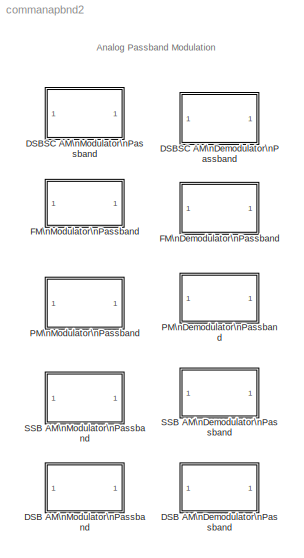
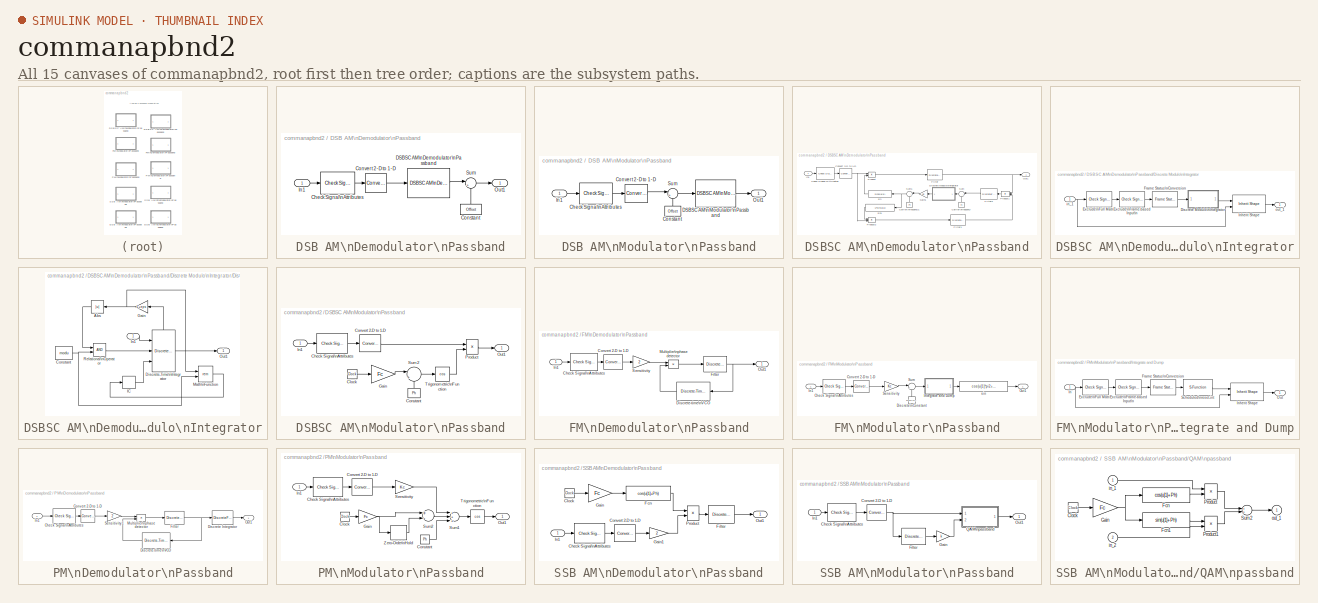
[diagram: thumbnail index - all 15 canvases of the model, root first then tree order]
MODEL commanapbnd2
KIND library
BLOCK [SubSystem] DSB AM\nDemodulator\nPassband
  MaskCallbackString = |||||
  MaskDescription = Demodulate a double-sideband amplitude modulated signal. The input signal must be a sample-based scalar. The output is a 1-D scalar.
  MaskDisplay = plot(0,0,100,100,[5+4.5*[0:.15:10] 50 50 50 50+4.5*[0:10]],[85+10*[sin([0:.15:10]*pi*2+cumsum(sin([0:.15:10]*pi/5))/2)] 85 99 75   10*sin([0:10]*pi/5)+85]);\ndisp('DSB AM')
  MaskEnableString = on,on,on,on,on,on
  MaskHelp = helpview(commbhelp)
  MaskIconFrame = on
  MaskIconOpaque = on
  MaskIconRotate = none
  MaskIconUnits = autoscale
  MaskInitialization = if ((length(Ph)~=1) | (length(Offset)~=1) | (length(ts)~=1) | (length(Fc)~=1))error('Mask parameters must be scalar values.');end;
  MaskPromptString = Offset factor:|Carrier frequency (Hz):|Initial phase (rad):|Lowpass filter numerator:|Lowpass filter denominator:|Sample time (s):
  MaskSelfModifiable = on
  MaskStyleString = edit,edit,edit,edit,edit,edit
  MaskTabNameString = ,,,,,
  MaskToolTipString = on,on,on,on,on,on
  MaskTunableValueString = on,on,on,on,on,on
  MaskType = DSB AM Demodulator Passband
  MaskValueString = 1|100|0|[4.57 9.14 4.57]*.01|[1 -1.3108 .4936]|0.001
  MaskVarAliasString = ,,,,,
  MaskVariables = Offset=@1;Fc=@2;Ph=@3;num=@4;den=@5;ts=@6;
  MaskVisibilityString = on,on,on,on,on,on
  Ports = [1, 1]
  TreatAsAtomicUnit = off
BLOCK [Reference] DSB AM\nDemodulator\nPassband/Check Signal\nAttributes  REF=dspsigattribs/Check Signal\nAttributes
  Complexity = Ignore
  DatatypeCheckMethod = Ignore
  DatatypeGeneral = Boolean
  Dimensions = Scalar (1-D or 2-D)
  DimsCheckMethod = Is...
  DtypeFixedSpecific = Any fixed-point
  DtypeFloatSpecific = Any floating-point
  DtypeIntSpecific = Any integer
  Frame = Sample-based
  Ports = [1, 1]
  SampleMode = Ignore
  SigAttribCheckMethod = Does not match attributes exactly
  SourceBlock = dspsigattribs/Check Signal\nAttributes
  SourceType = Check Signal Attributes
BLOCK [Constant] DSB AM\nDemodulator\nPassband/Constant
  Value = Offset
BLOCK [Reference] DSB AM\nDemodulator\nPassband/Convert 2-D to 1-D  REF=dspsigattribs/Convert 2-D to 1-D
  Ports = [1, 1]
  SourceBlock = dspsigattribs/Convert 2-D to 1-D
  SourceType = Convert 2-D to 1-D
BLOCK [Reference] DSB AM\nDemodulator\nPassband/DSBSC AM\nDemodulator\nPassband  REF=commanapbnd2/DSBSC AM\nDemodulator\nPassband
  Fc = Fc
  Ph = Ph
  Ports = [1, 1]
  SourceBlock = commanapbnd2/DSBSC AM\nDemodulator\nPassband
  SourceType = DSBSC AM Demodulator Passband
  den = den
  num = num
  ts = ts
BLOCK [Inport] DSB AM\nDemodulator\nPassband/In1
  IconDisplay = Port number
BLOCK [Outport] DSB AM\nDemodulator\nPassband/Out1
  IconDisplay = Port number
BLOCK [Sum] DSB AM\nDemodulator\nPassband/Sum
  IconShape = round
  Inputs = |+-
  Ports = [2, 1]
BLOCK [SubSystem] DSB AM\nModulator\nPassband
  MaskCallbackString = ||
  MaskDescription = Modulate the input signal using the double-sideband amplitude modulation method. The input signal must be a sample-based scalar. The output is a 1-D scalar.
  MaskDisplay = plot(0,0,100,100,[4.5*[0:10]+5 50 50 50 50+4.5*[0:.15:10]],[10*sin([0:10]*pi/5)+85 85 99 75 85+10*[sin([0:.15:10]*pi*2+cumsum(sin([0:.15:10]*pi/5))/2)]]);\ndisp('DSB AM')
  MaskEnableString = on,on,on
  MaskHelp = helpview(commbhelp)
  MaskIconFrame = on
  MaskIconOpaque = on
  MaskIconRotate = none
  MaskIconUnits = autoscale
  MaskInitialization = if ((length(Ph)~=1) | (length(Fc)~=1) | (length(Offset)~=1))error('Mask parameters must be scalar values.');end;
  MaskPromptString = Input signal offset:|Carrier frequency (Hz):|Initial phase (rad):
  MaskStyleString = edit,edit,edit
  MaskTabNameString = ,,
  MaskToolTipString = on,on,on
  MaskTunableValueString = on,on,on
  MaskType = DSB AM Modulator Passband
  MaskValueString = 1|100|0
  MaskVarAliasString = ,,
  MaskVariables = Offset=@1;Fc=@2;Ph=@3;
  MaskVisibilityString = on,on,on
  Ports = [1, 1]
  TreatAsAtomicUnit = off
BLOCK [Reference] DSB AM\nModulator\nPassband/Check Signal\nAttributes  REF=dspsigattribs/Check Signal\nAttributes
  Complexity = Ignore
  DatatypeCheckMethod = Ignore
  DatatypeGeneral = Boolean
  Dimensions = Scalar (1-D or 2-D)
  DimsCheckMethod = Is...
  DtypeFixedSpecific = Any fixed-point
  DtypeFloatSpecific = Any floating-point
  DtypeIntSpecific = Any integer
  Frame = Sample-based
  Ports = [1, 1]
  SampleMode = Ignore
  SigAttribCheckMethod = Does not match attributes exactly
  SourceBlock = dspsigattribs/Check Signal\nAttributes
  SourceType = Check Signal Attributes
BLOCK [Constant] DSB AM\nModulator\nPassband/Constant
  Value = Offset
BLOCK [Reference] DSB AM\nModulator\nPassband/Convert 2-D to 1-D  REF=dspsigattribs/Convert 2-D to 1-D
  Ports = [1, 1]
  SourceBlock = dspsigattribs/Convert 2-D to 1-D
  SourceType = Convert 2-D to 1-D
BLOCK [Reference] DSB AM\nModulator\nPassband/DSBSC AM\nModulator\nPassband  REF=commanapbnd2/DSBSC AM\nModulator\nPassband
  Fc = Fc
  Ph = Ph
  Ports = [1, 1]
  SourceBlock = commanapbnd2/DSBSC AM\nModulator\nPassband
  SourceType = DSBSC AM Modulator Passband
BLOCK [Inport] DSB AM\nModulator\nPassband/In1
  IconDisplay = Port number
BLOCK [Outport] DSB AM\nModulator\nPassband/Out1
  IconDisplay = Port number
BLOCK [Sum] DSB AM\nModulator\nPassband/Sum
  IconShape = round
  Inputs = |++
  Ports = [2, 1]
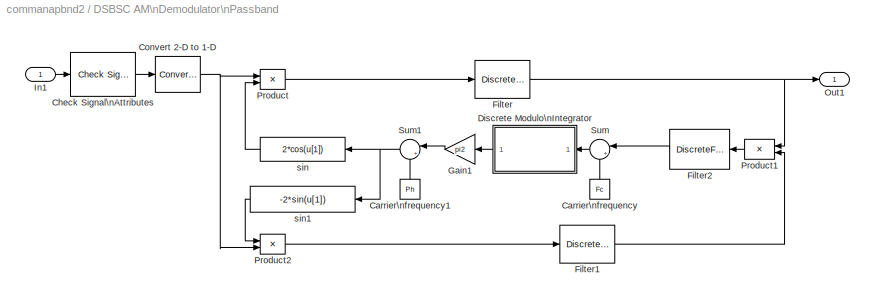
BLOCK [SubSystem] DSBSC AM\nDemodulator\nPassband
  MaskCallbackString = ||||
  MaskDescription = Demodulate a double-sideband suppressed carrier amplitude modulated signal. The input signal must be a sample-based scalar. The output is a 1-D scalar.
  MaskDisplay = plot(0,0,100,100,[5+4.5*[0:.15:10] 50 50 50 50+4.5*[0:10]],[85+10*[sin([0:.15:10]*pi*2+cumsum(sin([0:.15:10]*pi/5))/2)] 85 99 75   10*sin([0:10]*pi/5)+85]);					\ndisp('DSBSC AM')
  MaskEnableString = on,on,on,on,on
  MaskHelp = helpview(commbhelp)
  MaskIconFrame = on
  MaskIconOpaque = on
  MaskIconRotate = none
  MaskIconUnits = autoscale
  MaskInitialization = if ((length(Ph)~=1) | (length(Fc)~=1) | (length(ts)~=1))error('Mask parameters must be scalar values.');end;\npi2=pi*2;\n\n\n
  MaskPromptString = Carrier frequency (Hz):|Lowpass filter numerator:|Lowpass filter denominator:|Initial phase (rad):|Sample time (s):
  MaskSelfModifiable = on
  MaskStyleString = edit,edit,edit,edit,edit
  MaskTabNameString = ,,,,
  MaskToolTipString = on,on,on,on,on
  MaskTunableValueString = on,on,on,on,on
  MaskType = DSBSC AM Demodulator Passband
  MaskValueString = 100|[4.57 9.14 4.57]*.01|[1 -1.3108 .4936]|pi/2|0.001
  MaskVarAliasString = ,,,,
  MaskVariables = Fc=@1;num=@2;den=@3;Ph=@4;ts=@5;
  MaskVisibilityString = on,on,on,on,on
  Ports = [1, 1]
  TreatAsAtomicUnit = off
BLOCK [Constant] DSBSC AM\nDemodulator\nPassband/Carrier\nfrequency
  MaskIconFrame = on
  MaskIconOpaque = on
  MaskIconRotate = none
  MaskIconUnits = autoscale
  Value = Fc
BLOCK [Constant] DSBSC AM\nDemodulator\nPassband/Carrier\nfrequency1
  MaskIconFrame = on
  MaskIconOpaque = on
  MaskIconRotate = none
  MaskIconUnits = autoscale
  Value = Ph
BLOCK [Reference] DSBSC AM\nDemodulator\nPassband/Check Signal\nAttributes  REF=dspsigattribs/Check Signal\nAttributes
  Complexity = Ignore
  DatatypeCheckMethod = Ignore
  DatatypeGeneral = Boolean
  Dimensions = Scalar (1-D or 2-D)
  DimsCheckMethod = Is...
  DtypeFixedSpecific = Any fixed-point
  DtypeFloatSpecific = Any floating-point
  DtypeIntSpecific = Any integer
  Frame = Sample-based
  Ports = [1, 1]
  SampleMode = Ignore
  SigAttribCheckMethod = Does not match attributes exactly
  SourceBlock = dspsigattribs/Check Signal\nAttributes
  SourceType = Check Signal Attributes
BLOCK [Reference] DSBSC AM\nDemodulator\nPassband/Convert 2-D to 1-D  REF=dspsigattribs/Convert 2-D to 1-D
  Ports = [1, 1]
  SourceBlock = dspsigattribs/Convert 2-D to 1-D
  SourceType = Convert 2-D to 1-D
BLOCK [SubSystem] DSBSC AM\nDemodulator\nPassband/Discrete Modulo\nIntegrator
  ErrorFcn = commblkdmint
  MaskCallbackString = |||
  MaskDescription = Integrate the input signal in discrete time and then uses the Absolute value bound parameter, K, to produce output strictly between -K and K. The block uses the rem function in MATLAB.\n\nThe input can be either a scalar, a sample-based vector, or a frame-based row vector.  This block processes each vector element independently.
  MaskDisplay = disp('Discrete\\nModulo\\nIntegrator')
  MaskEnableString = on,on,on,on
  MaskHelp = helpview(commbhelp)
  MaskIconFrame = on
  MaskIconOpaque = on
  MaskIconRotate = none
  MaskIconUnits = autoscale
  MaskInitialization = commblkdmodint(gcb);
  MaskPromptString = Integration method:|Absolute value bound:|Initial condition:|Sample time:
  MaskSelfModifiable = on
  MaskStyleString = popup(Forward Euler|Backward Euler|Trapezoidal),edit,edit,edit
  MaskTabNameString = ,,,
  MaskToolTipString = on,on,on,on
  MaskTunableValueString = on,on,on,on
  MaskType = Discrete Modulo Integrator
  MaskValueString = Forward Euler|1|0|ts
  MaskVarAliasString = ,,,
  MaskVariables = method=&1;modu=@2;init=@3;ts=@4;
  MaskVisibilityString = on,on,on,on
  Ports = [1, 1]
  TreatAsAtomicUnit = off
BLOCK [SubSystem] DSBSC AM\nDemodulator\nPassband/Discrete Modulo\nIntegrator/Discrete Modulo\nIntegrator
  Ports = [1, 1]
  TreatAsAtomicUnit = off
BLOCK [Abs] DSBSC AM\nDemodulator\nPassband/Discrete Modulo\nIntegrator/Discrete Modulo\nIntegrator/Abs
BLOCK [Constant] DSBSC AM\nDemodulator\nPassband/Discrete Modulo\nIntegrator/Discrete Modulo\nIntegrator/Constant
  Value = modu
BLOCK [DiscreteIntegrator] DSBSC AM\nDemodulator\nPassband/Discrete Modulo\nIntegrator/Discrete Modulo\nIntegrator/Discrete-Time\nIntegrator
  ExternalReset = rising
  InitialConditionSource = external
  IntegratorMethod = Forward Euler
  LowerSaturationLimit = -2*modu
  Ports = [3, 1, 0, 0, 1]
  SampleTime = ts
  ShowStatePort = on
  UpperSaturationLimit = 2*modu
BLOCK [Gain] DSBSC AM\nDemodulator\nPassband/Discrete Modulo\nIntegrator/Discrete Modulo\nIntegrator/Gain
  Gain = 1+eps
BLOCK [InitialCondition] DSBSC AM\nDemodulator\nPassband/Discrete Modulo\nIntegrator/Discrete Modulo\nIntegrator/IC
  Value = init
BLOCK [Inport] DSBSC AM\nDemodulator\nPassband/Discrete Modulo\nIntegrator/Discrete Modulo\nIntegrator/In1
  IconDisplay = Port number
BLOCK [Math] DSBSC AM\nDemodulator\nPassband/Discrete Modulo\nIntegrator/Discrete Modulo\nIntegrator/Math\nFunction
  Operator = rem
  Ports = [2, 1]
BLOCK [Outport] DSBSC AM\nDemodulator\nPassband/Discrete Modulo\nIntegrator/Discrete Modulo\nIntegrator/Out1
  IconDisplay = Port number
BLOCK [RelationalOperator] DSBSC AM\nDemodulator\nPassband/Discrete Modulo\nIntegrator/Discrete Modulo\nIntegrator/Relational\nOperator
BLOCK [Reference] DSBSC AM\nDemodulator\nPassband/Discrete Modulo\nIntegrator/Exclude\nFrame-based Input\n  REF=dspsigattribs/Check Signal\nAttributes
  Complexity = Ignore
  DatatypeCheckMethod = Ignore
  DatatypeGeneral = Boolean
  Dimensions = Row vector (2-D) or scalar
  DimsCheckMethod = Is not...
  DtypeFixedSpecific = Any fixed-point
  DtypeFloatSpecific = Any floating-point
  DtypeIntSpecific = Any integer
  Frame = Frame-based
  Ports = [1, 1]
  SampleMode = Ignore
  SigAttribCheckMethod = Matches attributes exactly
  SourceBlock = dspsigattribs/Check Signal\nAttributes
  SourceType = Check Signal Attributes
BLOCK [Reference] DSBSC AM\nDemodulator\nPassband/Discrete Modulo\nIntegrator/Exclude\nFull Matrix  REF=dspsigattribs/Check Signal\nAttributes
  Complexity = Ignore
  DatatypeCheckMethod = Ignore
  DatatypeGeneral = Boolean
  Dimensions = Full matrix (2-D)
  DimsCheckMethod = Is...
  DtypeFixedSpecific = Any fixed-point
  DtypeFloatSpecific = Any floating-point
  DtypeIntSpecific = Any integer
  Frame = Ignore
  Ports = [1, 1]
  SampleMode = Ignore
  SigAttribCheckMethod = Matches attributes exactly
  SourceBlock = dspsigattribs/Check Signal\nAttributes
  SourceType = Check Signal Attributes
BLOCK [Reference] DSBSC AM\nDemodulator\nPassband/Discrete Modulo\nIntegrator/Frame Status\nConversion  REF=dspsigattribs/Frame Status\nConversion
  Ports = [1, 1]
  SourceBlock = dspsigattribs/Frame Status\nConversion
  SourceType = Frame Status Conversion
  growRefPort = off
  outframe = Sample-based
BLOCK [Reference] DSBSC AM\nDemodulator\nPassband/Discrete Modulo\nIntegrator/Inherit Shape  REF=commblksprivate/Inherit Shape
  Ports = [2, 1]
  SourceBlock = commblksprivate/Inherit Shape
  SourceType = Inherit Shape
BLOCK [Inport] DSBSC AM\nDemodulator\nPassband/Discrete Modulo\nIntegrator/in_1
  IconDisplay = Port number
BLOCK [Outport] DSBSC AM\nDemodulator\nPassband/Discrete Modulo\nIntegrator/out_1
  IconDisplay = Port number
  InitialOutput = 0
BLOCK [DiscreteFilter] DSBSC AM\nDemodulator\nPassband/Filter
  Denominator = den
  Numerator = num
  SampleTime = ts
BLOCK [DiscreteFilter] DSBSC AM\nDemodulator\nPassband/Filter1
  Denominator = den
  Numerator = num
  SampleTime = ts
BLOCK [DiscreteFilter] DSBSC AM\nDemodulator\nPassband/Filter2
  Denominator = den
  MaskIconFrame = on
  MaskIconOpaque = on
  MaskIconRotate = none
  MaskIconUnits = autoscale
  Numerator = num
  SampleTime = ts
BLOCK [Gain] DSBSC AM\nDemodulator\nPassband/Gain1
  Gain = pi2
  MaskIconFrame = on
  MaskIconOpaque = on
  MaskIconRotate = none
  MaskIconUnits = autoscale
BLOCK [Inport] DSBSC AM\nDemodulator\nPassband/In1
  IconDisplay = Port number
BLOCK [Outport] DSBSC AM\nDemodulator\nPassband/Out1
  IconDisplay = Port number
BLOCK [Product] DSBSC AM\nDemodulator\nPassband/Product
  Ports = [2, 1]
  RndMeth = Floor
BLOCK [Product] DSBSC AM\nDemodulator\nPassband/Product1
  MaskIconFrame = on
  MaskIconOpaque = on
  MaskIconRotate = none
  MaskIconUnits = autoscale
  Ports = [2, 1]
  RndMeth = Floor
BLOCK [Product] DSBSC AM\nDemodulator\nPassband/Product2
  Ports = [2, 1]
  RndMeth = Floor
BLOCK [Sum] DSBSC AM\nDemodulator\nPassband/Sum
  IconShape = round
  Inputs = |++
  MaskIconFrame = on
  MaskIconOpaque = on
  MaskIconRotate = none
  MaskIconUnits = autoscale
  Ports = [2, 1]
BLOCK [Sum] DSBSC AM\nDemodulator\nPassband/Sum1
  IconShape = round
  Inputs = |++
  MaskIconFrame = on
  MaskIconOpaque = on
  MaskIconRotate = none
  MaskIconUnits = autoscale
  Ports = [2, 1]
BLOCK [Fcn] DSBSC AM\nDemodulator\nPassband/sin
  Expr = 2*cos(u[1])
  MaskIconFrame = on
  MaskIconOpaque = on
  MaskIconRotate = none
  MaskIconUnits = autoscale
BLOCK [Fcn] DSBSC AM\nDemodulator\nPassband/sin1
  Expr = -2*sin(u[1])
  MaskIconFrame = on
  MaskIconOpaque = on
  MaskIconRotate = none
  MaskIconUnits = autoscale
BLOCK [SubSystem] DSBSC AM\nModulator\nPassband
  MaskCallbackString = |
  MaskDescription = Modulate the input signal using the double-sideband suppressed carrier amplitude modulation method. The input signal must be a sample-based scalar. The output is a 1-D scalar.
  MaskDisplay = plot(0,0,100,100,[4.5*[0:10]+5 50 50 50 50+4.5*[0:.15:10]],[10*sin([0:10]*pi/5)+85 85 99 75 85+10*[sin([0:.15:10]*pi*2+cumsum(sin([0:.15:10]*pi/5))/2)]]);\ndisp('DSBSC AM')
  MaskEnableString = on,on
  MaskHelp = helpview(commbhelp)
  MaskIconFrame = on
  MaskIconOpaque = on
  MaskIconRotate = none
  MaskIconUnits = autoscale
  MaskInitialization = if ((length(Ph)~=1) | (length(Fc)~=1))error('Mask parameters must be scalar values.');end;\nFc=Fc*2*pi;\n\n
  MaskPromptString = Carrier frequency (Hz):|Initial phase (rad):
  MaskStyleString = edit,edit
  MaskTabNameString = ,
  MaskToolTipString = on,on
  MaskTunableValueString = on,on
  MaskType = DSBSC AM Modulator Passband
  MaskValueString = 100|pi/2
  MaskVarAliasString = ,
  MaskVariables = Fc=@1;Ph=@2;
  MaskVisibilityString = on,on
  Ports = [1, 1]
  TreatAsAtomicUnit = off
BLOCK [Reference] DSBSC AM\nModulator\nPassband/Check Signal\nAttributes  REF=dspsigattribs/Check Signal\nAttributes
  Complexity = Ignore
  DatatypeCheckMethod = Ignore
  DatatypeGeneral = Boolean
  Dimensions = Scalar (1-D or 2-D)
  DimsCheckMethod = Is...
  DtypeFixedSpecific = Any fixed-point
  DtypeFloatSpecific = Any floating-point
  DtypeIntSpecific = Any integer
  Frame = Sample-based
  Ports = [1, 1]
  SampleMode = Ignore
  SigAttribCheckMethod = Does not match attributes exactly
  SourceBlock = dspsigattribs/Check Signal\nAttributes
  SourceType = Check Signal Attributes
BLOCK [Clock] DSBSC AM\nModulator\nPassband/Clock
  Decimation = 10
BLOCK [Constant] DSBSC AM\nModulator\nPassband/Constant
  Value = Ph
BLOCK [Reference] DSBSC AM\nModulator\nPassband/Convert 2-D to 1-D  REF=dspsigattribs/Convert 2-D to 1-D
  Ports = [1, 1]
  SourceBlock = dspsigattribs/Convert 2-D to 1-D
  SourceType = Convert 2-D to 1-D
BLOCK [Gain] DSBSC AM\nModulator\nPassband/Gain
  Gain = Fc
BLOCK [Inport] DSBSC AM\nModulator\nPassband/In1
  IconDisplay = Port number
BLOCK [Outport] DSBSC AM\nModulator\nPassband/Out1
  IconDisplay = Port number
BLOCK [Product] DSBSC AM\nModulator\nPassband/Product
  Ports = [2, 1]
  RndMeth = Floor
BLOCK [Sum] DSBSC AM\nModulator\nPassband/Sum2
  IconShape = round
  Inputs = |++
  Ports = [2, 1]
BLOCK [Trigonometry] DSBSC AM\nModulator\nPassband/Trigonometric\nFunction
  Operator = cos
  Ports = [1, 1]
BLOCK [SubSystem] FM\nDemodulator\nPassband
  MaskCallbackString = |||||
  MaskDescription = Demodulate a frequency modulated signal using a phase-locked loop. The input signal must be a sample-based scalar. The output is a 1-D scalar.
  MaskDisplay = plot(0,0,100,100,[5+4.5*[0:.15:10] 50 50 50 50+4.5*[0:10]],[85+10*[sin([0:.15:10]*pi*2+cumsum(sin([0:.15:10]*pi/5))/2)] 85 99 75   10*sin([0:10]*pi/5)+85]);\ndisp('FM')
  MaskEnableString = on,on,on,on,on,on
  MaskHelp = helpview(commbhelp)
  MaskIconFrame = on
  MaskIconOpaque = on
  MaskIconRotate = none
  MaskIconUnits = autoscale
  MaskInitialization = if ((length(Ph)~=1) | (length(HzPerVolt)~=1) | (length(ts)~=1) | (length(Fc)~=1))error('Mask parameters must be scalar values.');end;\nPh=Ph+pi/2;\n\n
  MaskPromptString = Carrier frequency (Hz):|Initial phase (rad):|Modulation constant (Hertz per volt):|Lowpass filter numerator:|Lowpass filter denominator:|Sample time (s):
  MaskStyleString = edit,edit,edit,edit,edit,edit
  MaskTabNameString = ,,,,,
  MaskToolTipString = on,on,on,on,on,on
  MaskTunableValueString = on,on,on,on,on,on
  MaskType = FM Demodulator Passband
  MaskValueString = 100|0|1|[4.57 9.14 4.57]*.01|[1 -1.3108 .4936]|0.001
  MaskVarAliasString = ,,,,,
  MaskVariables = Fc=@1;Ph=@2;HzPerVolt=@3;num=@4;den=@5;ts=@6;
  MaskVisibilityString = on,on,on,on,on,on
  Ports = [1, 1]
  TreatAsAtomicUnit = off
BLOCK [Reference] FM\nDemodulator\nPassband/Check Signal\nAttributes  REF=dspsigattribs/Check Signal\nAttributes
  Complexity = Ignore
  DatatypeCheckMethod = Ignore
  DatatypeGeneral = Boolean
  Dimensions = Scalar (1-D or 2-D)
  DimsCheckMethod = Is...
  DtypeFixedSpecific = Any fixed-point
  DtypeFloatSpecific = Any floating-point
  DtypeIntSpecific = Any integer
  Frame = Sample-based
  Ports = [1, 1]
  SampleMode = Ignore
  SigAttribCheckMethod = Does not match attributes exactly
  SourceBlock = dspsigattribs/Check Signal\nAttributes
  SourceType = Check Signal Attributes
BLOCK [Reference] FM\nDemodulator\nPassband/Convert 2-D to 1-D  REF=dspsigattribs/Convert 2-D to 1-D
  Ports = [1, 1]
  SourceBlock = dspsigattribs/Convert 2-D to 1-D
  SourceType = Convert 2-D to 1-D
BLOCK [Reference] FM\nDemodulator\nPassband/Discrete-time\nVCO  REF=commsynccomp2/Discrete-Time\nVCO
  Ac = 1
  Fc = Fc
  Kc = HzPerVolt
  Ph = Ph
  Ports = [1, 1]
  SourceBlock = commsynccomp2/Discrete-Time\nVCO
  SourceType = Discrete-Time VCO
  ts = ts
BLOCK [DiscreteFilter] FM\nDemodulator\nPassband/Filter
  Denominator = den
  Numerator = num
  SampleTime = ts
BLOCK [Inport] FM\nDemodulator\nPassband/In1
  IconDisplay = Port number
BLOCK [Product] FM\nDemodulator\nPassband/Multiplier\nphase detector
  Ports = [2, 1]
  RndMeth = Floor
BLOCK [Outport] FM\nDemodulator\nPassband/Out1
  IconDisplay = Port number
BLOCK [Gain] FM\nDemodulator\nPassband/Sensitivity
  Gain = 2
BLOCK [SubSystem] FM\nModulator\nPassband
  MaskCallbackString = ||||
  MaskDescription = Modulate the input signal using the frequency modulation method. The input signal must be a sample-based scalar. The output is a 1-D scalar.
  MaskDisplay = plot(0,0,100,100,[4.5*[0:10]+5 50 50 50 50+4.5*[0:.15:10]],[10*sin([0:10]*pi/5)+85 85 99 75 85+10*[sin([0:.15:10]*pi*2+cumsum(sin([0:.15:10]*pi/5))/2)]]);\ndisp('FM')
  MaskEnableString = on,on,on,on,on
  MaskHelp = helpview(commbhelp)
  MaskIconFrame = on
  MaskIconOpaque = on
  MaskIconRotate = none
  MaskIconUnits = autoscale
  MaskInitialization = if ((length(Ph)~=1) | (length(HzPerV)~=1) | (length(ts)~=1) | (length(td)~=1) | (length(Fc)~=1))error('Mask parameters must be scalar values.');end;\nKc=HzPerV;pi2=2*pi;if isinf(td),td=realmax;end;\n
  MaskPromptString = Carrier frequency (Hz):|Initial phase (rad):|Modulation constant (Hertz per volt):|Sample time (s):|Symbol interval (s, Use Inf for analog mod);
  MaskStyleString = edit,edit,edit,edit,edit
  MaskTabNameString = ,,,,
  MaskToolTipString = on,on,on,on,on
  MaskTunableValueString = on,on,on,on,on
  MaskType = FM Modulator Passband
  MaskValueString = 100|0|1|0.001|Inf
  MaskVarAliasString = ,,,,
  MaskVariables = Fc=@1;Ph=@2;HzPerV=@3;ts=@4;td=@5;
  MaskVisibilityString = on,on,on,on,on
  Ports = [1, 1]
  TreatAsAtomicUnit = off
BLOCK [Reference] FM\nModulator\nPassband/Check Signal\nAttributes  REF=dspsigattribs/Check Signal\nAttributes
  Complexity = Ignore
  DatatypeCheckMethod = Ignore
  DatatypeGeneral = Boolean
  Dimensions = Scalar (1-D or 2-D)
  DimsCheckMethod = Is...
  DtypeFixedSpecific = Any fixed-point
  DtypeFloatSpecific = Any floating-point
  DtypeIntSpecific = Any integer
  Frame = Sample-based
  Ports = [1, 1]
  SampleMode = Ignore
  ShowPortLabels = on
  SigAttribCheckMethod = Does not match attributes exactly
  SourceBlock = dspsigattribs/Check Signal\nAttributes
  SourceType = Check Signal Attributes
BLOCK [Reference] FM\nModulator\nPassband/Convert 2-D to 1-D  REF=dspsigattribs/Convert 2-D to 1-D
  Ports = [1, 1]
  ShowPortLabels = off
  SourceBlock = dspsigattribs/Convert 2-D to 1-D
  SourceType = Convert 2-D to 1-D
BLOCK [Reference] FM\nModulator\nPassband/Discrete\nConstant  REF=dspsrcs4/DSP\nConstant
  FramebasedOutput = off
  InterpretAs1D = on
  Ports = [0, 1]
  SampleMode = Discrete
  ShowPortLabels = on
  SourceBlock = dspsrcs4/DSP\nConstant
  SourceType = DSP Constant
  Ts = ts
  Value = Fc
  additionalParams = off
  allowOverrides = on
  continuousOutput = Sample-based
  dataType = Inherit from 'Constant value'
  discreteOutput = Sample-based (interpret vectors as 1-D)
  fracBitsMode = Best precision
  framePeriod = ts
  numFracBits = 15
  sampTime = ts
  udDataType = sfix(16)
  wordLen = 16
BLOCK [Inport] FM\nModulator\nPassband/In1
  IconDisplay = Port number
BLOCK [SubSystem] FM\nModulator\nPassband/Integrate and Dump
  ErrorFcn = commblkintdmp
  MaskCallbackString = ||
  MaskDescription = Integrate the input signal in discrete time over the Integration period and then reduce modulo the Absolute value bound parameter. The integrator resets its internal state before integrating the next period.\n\nThe input can be either a scalar, a sample-based vector, or a frame-based row vector.  This block processes each vector element independently.
  MaskDisplay = disp('Integrate\\nand Dump')
  MaskEnableString = on,on,on
  MaskHelp = helpview(commbhelp)
  MaskIconFrame = on
  MaskIconOpaque = on
  MaskIconRotate = none
  MaskIconUnits = autoscale
  MaskInitialization = limit(find(isinf(limit))) = realmax;\ntd(find(isinf(td))) = realmax;\n\nif(~isempty(ts))\n   if(length(ts) ~= 1)\n      error('Sample time parameter must be a real scalar.');\n   end;\nend;
  MaskPromptString = Absolute value bound:|Integration period (s):|Sample time:
  MaskSelfModifiable = on
  MaskStyleString = edit,edit,edit
  MaskTabNameString = ,,
  MaskToolTipString = on,on,on
  MaskTunableValueString = on,on,on
  MaskType = Integrate and Dump
  MaskValueString = Inf/2|td|ts
  MaskVarAliasString = ,,
  MaskVariables = limit=@1;td=@2;ts=@3;
  MaskVisibilityString = on,on,on
  Ports = [1, 1]
  TreatAsAtomicUnit = off
BLOCK [Reference] FM\nModulator\nPassband/Integrate and Dump/Exclude\nFrame-based Input\n  REF=dspsigattribs/Check Signal\nAttributes
  Complexity = Ignore
  DatatypeCheckMethod = Ignore
  DatatypeGeneral = Boolean
  Dimensions = Row vector (2-D) or scalar
  DimsCheckMethod = Is not...
  DtypeFixedSpecific = Any fixed-point
  DtypeFloatSpecific = Any floating-point
  DtypeIntSpecific = Any integer
  Frame = Frame-based
  Ports = [1, 1]
  SampleMode = Ignore
  ShowPortLabels = on
  SigAttribCheckMethod = Matches attributes exactly
  SourceBlock = dspsigattribs/Check Signal\nAttributes
  SourceType = Check Signal Attributes
BLOCK [Reference] FM\nModulator\nPassband/Integrate and Dump/Exclude\nFull Matrix  REF=dspsigattribs/Check Signal\nAttributes
  Complexity = Ignore
  DatatypeCheckMethod = Ignore
  DatatypeGeneral = Boolean
  Dimensions = Full matrix (2-D)
  DimsCheckMethod = Is...
  DtypeFixedSpecific = Any fixed-point
  DtypeFloatSpecific = Any floating-point
  DtypeIntSpecific = Any integer
  Frame = Ignore
  Ports = [1, 1]
  SampleMode = Ignore
  ShowPortLabels = on
  SigAttribCheckMethod = Matches attributes exactly
  SourceBlock = dspsigattribs/Check Signal\nAttributes
  SourceType = Check Signal Attributes
BLOCK [Reference] FM\nModulator\nPassband/Integrate and Dump/Frame Status\nConversion  REF=dspsigattribs/Frame Status\nConversion
  Ports = [1, 1]
  ShowPortLabels = off
  SourceBlock = dspsigattribs/Frame Status\nConversion
  SourceType = Frame Status Conversion
  growRefPort = off
  outframe = Sample-based
BLOCK [Inport] FM\nModulator\nPassband/Integrate and Dump/In
  IconDisplay = Port number
BLOCK [Reference] FM\nModulator\nPassband/Integrate and Dump/Inherit Shape  REF=commblksprivate/Inherit Shape
  Ports = [2, 1]
  ShowPortLabels = on
  SourceBlock = commblksprivate/Inherit Shape
  SourceType = Inherit Shape
BLOCK [Outport] FM\nModulator\nPassband/Integrate and Dump/Out
  IconDisplay = Port number
  InitialOutput = 0
BLOCK [S-Function] FM\nModulator\nPassband/Integrate and Dump/Scheduled\nreset-int
  FunctionName = schdint
  Parameters = td, ts, limit
  Ports = [1, 1]
BLOCK [Outport] FM\nModulator\nPassband/Out1
  IconDisplay = Port number
BLOCK [Gain] FM\nModulator\nPassband/Sensitivity
  Gain = Kc
BLOCK [Sum] FM\nModulator\nPassband/Sum
  IconShape = round
  Inputs = |++
  Ports = [2, 1]
BLOCK [Fcn] FM\nModulator\nPassband/sin
  Expr = cos(u[1]*pi2+Ph)
BLOCK [SubSystem] PM\nDemodulator\nPassband
  MaskCallbackString = ||||||
  MaskDescription = Demodulate a phase modulated signal using a phase-locked loop. The input signal must be a sample-based scalar. The output is a 1-D scalar.
  MaskDisplay = plot(0,0,100,100,[5+4.5*[0:.15:10] 50 50 50 50+4.5*[0:10]],[85+10*[sin([0:.15:10]*pi*2+cumsum(sin([0:.15:10]*pi/5))/2)] 85 99 75   10*sin([0:10]*pi/5)+85]);\ndisp('PM')
  MaskEnableString = on,on,on,on,on,on,on
  MaskHelp = helpview(commbhelp)
  MaskIconFrame = on
  MaskIconOpaque = on
  MaskIconRotate = none
  MaskIconUnits = autoscale
  MaskInitialization = Ph=Ph+pi/2;\nKv=2*pi*HzPerVolt;\n
  MaskPromptString = Carrier frequency (Hz):|Initial phase (rad):|Modulation constant (Radians per volt):|Lowpass filter numerator:|Lowpass filter denominator:|VCO Gain (Hertz per volt):|Sample time (s):
  MaskStyleString = edit,edit,edit,edit,edit,edit,edit
  MaskTabNameString = ,,,,,,
  MaskToolTipString = on,on,on,on,on,on,on
  MaskTunableValueString = on,on,on,on,on,on,on
  MaskType = PM Demodulator Passband
  MaskValueString = 100|0|1|[4.57 9.14 4.57]*.01|[1 -1.3108 .4936]|1|0.001
  MaskVarAliasString = ,,,,,,
  MaskVariables = Fc=@1;Ph=@2;Kc=@3;num=@4;den=@5;HzPerVolt=@6;ts=@7;
  MaskVisibilityString = on,on,on,on,on,on,on
  Ports = [1, 1]
  TreatAsAtomicUnit = off
BLOCK [Reference] PM\nDemodulator\nPassband/Check Signal\nAttributes  REF=dspsigattribs/Check Signal\nAttributes
  Complexity = Ignore
  DatatypeCheckMethod = Ignore
  DatatypeGeneral = Boolean
  Dimensions = Scalar (1-D or 2-D)
  DimsCheckMethod = Is...
  DtypeFixedSpecific = Any fixed-point
  DtypeFloatSpecific = Any floating-point
  DtypeIntSpecific = Any integer
  Frame = Sample-based
  Ports = [1, 1]
  SampleMode = Ignore
  SigAttribCheckMethod = Does not match attributes exactly
  SourceBlock = dspsigattribs/Check Signal\nAttributes
  SourceType = Check Signal Attributes
BLOCK [Reference] PM\nDemodulator\nPassband/Convert 2-D to 1-D  REF=dspsigattribs/Convert 2-D to 1-D
  Ports = [1, 1]
  SourceBlock = dspsigattribs/Convert 2-D to 1-D
  SourceType = Convert 2-D to 1-D
BLOCK [DiscreteFilter] PM\nDemodulator\nPassband/Discrete Integrator
  Denominator = [1 -1]*Kc
  Numerator = Kv*ts(1)
  SampleTime = ts
BLOCK [Reference] PM\nDemodulator\nPassband/Discrete-time\nVCO  REF=commsynccomp2/Discrete-Time\nVCO
  Ac = 1
  Fc = Fc
  Kc = HzPerVolt
  Ph = Ph
  Ports = [1, 1]
  SourceBlock = commsynccomp2/Discrete-Time\nVCO
  SourceType = Discrete-Time VCO
  ts = ts
BLOCK [DiscreteFilter] PM\nDemodulator\nPassband/Filter
  Denominator = den
  Numerator = num
  SampleTime = ts
BLOCK [Inport] PM\nDemodulator\nPassband/In1
  IconDisplay = Port number
BLOCK [Product] PM\nDemodulator\nPassband/Multiplier\nphase detector
  Ports = [2, 1]
  RndMeth = Floor
BLOCK [Outport] PM\nDemodulator\nPassband/Out1
  IconDisplay = Port number
  InitialOutput = 0
BLOCK [Gain] PM\nDemodulator\nPassband/Sensitivity1
  Gain = 2
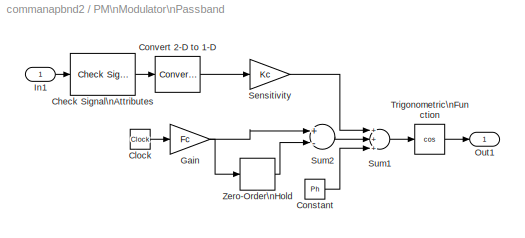
BLOCK [SubSystem] PM\nModulator\nPassband
  MaskCallbackString = |||
  MaskDescription = Modulate the input signal using the phase modulation method. The input signal must be a sample-based scalar. The output is a 1-D scalar.
  MaskDisplay = plot(0,0,100,100,[4.5*[0:10]+5 50 50 50 50+4.5*[0:.15:10]],[10*sin([0:10]*pi/5)+85 85 99 75 85+10*[sin([0:.15:10]*pi*2+cumsum(sin([0:.15:10]*pi/5))/2)]]);\ndisp('PM')
  MaskEnableString = on,on,on,on
  MaskHelp = helpview(commbhelp)
  MaskIconFrame = on
  MaskIconOpaque = on
  MaskIconRotate = none
  MaskIconUnits = autoscale
  MaskInitialization = if ((length(Ph)~=1) | (length(Kc)~=1) | (length(td)~=1) | (length(Fc)~=1))error('Mask parameters must be scalar values.');end;\nFc=Fc*2*pi;if isinf(td),td=realmax;end;\n
  MaskPromptString = Carrier frequency (Hz):|Initial phase (rad):|Modulation constant (Radians per volt):|Symbol interval (s, Use inf for analog case):
  MaskStyleString = edit,edit,edit,edit
  MaskTabNameString = ,,,
  MaskToolTipString = on,on,on,on
  MaskTunableValueString = on,on,on,on
  MaskType = PM Modulator Passband
  MaskValueString = 100|0|1|Inf
  MaskVarAliasString = ,,,
  MaskVariables = Fc=@1;Ph=@2;Kc=@3;td=@4;
  MaskVisibilityString = on,on,on,on
  Ports = [1, 1]
  TreatAsAtomicUnit = off
BLOCK [Reference] PM\nModulator\nPassband/Check Signal\nAttributes  REF=dspsigattribs/Check Signal\nAttributes
  Complexity = Ignore
  DatatypeCheckMethod = Ignore
  DatatypeGeneral = Boolean
  Dimensions = Scalar (1-D or 2-D)
  DimsCheckMethod = Is...
  DtypeFixedSpecific = Any fixed-point
  DtypeFloatSpecific = Any floating-point
  DtypeIntSpecific = Any integer
  Frame = Sample-based
  Ports = [1, 1]
  SampleMode = Ignore
  SigAttribCheckMethod = Does not match attributes exactly
  SourceBlock = dspsigattribs/Check Signal\nAttributes
  SourceType = Check Signal Attributes
BLOCK [Clock] PM\nModulator\nPassband/Clock
  Decimation = 10
BLOCK [Constant] PM\nModulator\nPassband/Constant
  Value = Ph
BLOCK [Reference] PM\nModulator\nPassband/Convert 2-D to 1-D  REF=dspsigattribs/Convert 2-D to 1-D
  Ports = [1, 1]
  SourceBlock = dspsigattribs/Convert 2-D to 1-D
  SourceType = Convert 2-D to 1-D
BLOCK [Gain] PM\nModulator\nPassband/Gain
  Gain = Fc
BLOCK [Inport] PM\nModulator\nPassband/In1
  IconDisplay = Port number
BLOCK [Outport] PM\nModulator\nPassband/Out1
  IconDisplay = Port number
BLOCK [Gain] PM\nModulator\nPassband/Sensitivity
  Gain = Kc
BLOCK [Sum] PM\nModulator\nPassband/Sum1
  Inputs = +++
  Ports = [3, 1]
BLOCK [Sum] PM\nModulator\nPassband/Sum2
  Inputs = +-
  Ports = [2, 1]
BLOCK [Trigonometry] PM\nModulator\nPassband/Trigonometric\nFunction
  Operator = cos
  Ports = [1, 1]
BLOCK [ZeroOrderHold] PM\nModulator\nPassband/Zero-Order\nHold
  SampleTime = td
BLOCK [SubSystem] SSB AM\nDemodulator\nPassband
  MaskCallbackString = ||||
  MaskDescription = Demodulate a single-sideband amplitude modulated signal. The input signal must be a sample-based scalar. The output is a 1-D scalar.
  MaskDisplay = plot(0,0,100,100,[5+4.5*[0:.15:10] 50 50 50 50+4.5*[0:10]],[85+10*[sin([0:.15:10]*pi*2+cumsum(sin([0:.15:10]*pi/5))/2)] 85 99 75   10*sin([0:10]*pi/5)+85]);\ndisp('SSB AM')
  MaskEnableString = on,on,on,on,on
  MaskHelp = helpview(commbhelp)
  MaskIconFrame = on
  MaskIconOpaque = on
  MaskIconRotate = none
  MaskIconUnits = autoscale
  MaskInitialization = if ((length(Ph)~=1) | (length(Fc)~=1) | (length(ts)~=1))error('Mask parameters must be scalar values.');end;\nFc=Fc*2*pi;Pg=Ph+pi/2;\n
  MaskPromptString = Carrier frequency (Hz):|Lowpass filter numerator:|Lowpass filter denominator:|Initial phase (rad):|Sample time (s):
  MaskStyleString = edit,edit,edit,edit,edit
  MaskTabNameString = ,,,,
  MaskToolTipString = on,on,on,on,on
  MaskTunableValueString = on,on,on,on,on
  MaskType = SSB AM Demodulator Passband
  MaskValueString = 100|[4.57 9.14 4.57]*.01|[1 -1.3108 .4936]|0|0.001
  MaskVarAliasString = ,,,,
  MaskVariables = Fc=@1;num=@2;den=@3;Ph=@4;ts=@5;
  MaskVisibilityString = on,on,on,on,on
  Ports = [1, 1]
  TreatAsAtomicUnit = off
BLOCK [Reference] SSB AM\nDemodulator\nPassband/Check Signal\nAttributes  REF=dspsigattribs/Check Signal\nAttributes
  Complexity = Ignore
  DatatypeCheckMethod = Ignore
  DatatypeGeneral = Boolean
  Dimensions = Scalar (1-D or 2-D)
  DimsCheckMethod = Is...
  DtypeFixedSpecific = Any fixed-point
  DtypeFloatSpecific = Any floating-point
  DtypeIntSpecific = Any integer
  Frame = Sample-based
  Ports = [1, 1]
  SampleMode = Ignore
  SigAttribCheckMethod = Does not match attributes exactly
  SourceBlock = dspsigattribs/Check Signal\nAttributes
  SourceType = Check Signal Attributes
BLOCK [Clock] SSB AM\nDemodulator\nPassband/Clock
  Decimation = 10
BLOCK [Reference] SSB AM\nDemodulator\nPassband/Convert 2-D to 1-D  REF=dspsigattribs/Convert 2-D to 1-D
  Ports = [1, 1]
  SourceBlock = dspsigattribs/Convert 2-D to 1-D
  SourceType = Convert 2-D to 1-D
BLOCK [Fcn] SSB AM\nDemodulator\nPassband/Fcn
  Expr = cos(u[1]+Ph)
BLOCK [DiscreteFilter] SSB AM\nDemodulator\nPassband/Filter
  Denominator = den
  Numerator = num
  SampleTime = ts
BLOCK [Gain] SSB AM\nDemodulator\nPassband/Gain
  Gain = Fc
BLOCK [Gain] SSB AM\nDemodulator\nPassband/Gain1
  Gain = 2
BLOCK [Inport] SSB AM\nDemodulator\nPassband/In1
  IconDisplay = Port number
BLOCK [Outport] SSB AM\nDemodulator\nPassband/Out1
  IconDisplay = Port number
BLOCK [Product] SSB AM\nDemodulator\nPassband/Product
  Ports = [2, 1]
  RndMeth = Floor
BLOCK [SubSystem] SSB AM\nModulator\nPassband
  MaskCallbackString = |||||
  MaskDescription = Modulate the input signal using the single-sideband amplitude modulation method with Hilbert transform filter. The input signal must be a sample-based scalar. The output is a 1-D scalar.
  MaskDisplay = plot(0,0,100,100,[4.5*[0:10]+5 50 50 50 50+4.5*[0:.15:10]],[10*sin([0:10]*pi/5)+85 85 99 75 85+10*[sin([0:.15:10]*pi*2+cumsum(sin([0:.15:10]*pi/5))/2)]]);\ndisp('SSB AM')
  MaskEnableString = on,on,on,on,on,on
  MaskHelp = helpview(commbhelp)
  MaskIconFrame = on
  MaskIconOpaque = on
  MaskIconRotate = none
  MaskIconUnits = autoscale
  MaskInitialization = if ((length(Ph)~=1) | (length(ban)~=1) | (length(ts)~=1) | (length(dly)~=1) | (length(Fc)~=1))error('Mask parameters must be scalar values.');end;\nif dly/ts<3 error('Time delay is too small compared to the Sample time value');end;\nif ban>1/ts, ban=1/ts-ts;end;\nif(dly/ts>1000)\nerror(['The filter coefficients will take too long to compute.'...\n        'Try reducing the length of the impulse res...<+164ch>
  MaskPromptString = Carrier frequency (Hz):|Initial phase (rad):|Bandwidth of the input signal (Hz):|Time delay for Hilbert transform filter (s):|Sample time (s):|Sideband to modulate:
  MaskStyleString = edit,edit,edit,edit,edit,popup(Upper|Lower)
  MaskTabNameString = ,,,,,
  MaskToolTipString = on,on,on,on,on,on
  MaskTunableValueString = on,on,on,on,on,on
  MaskType = SSB AM Modulator Passband
  MaskValueString = 100|0|10|0.01|0.001|upper
  MaskVarAliasString = ,,,,,
  MaskVariables = Fc=@1;Ph=@2;ban=@3;dly=@4;ts=@5;sd=&6;
  MaskVisibilityString = on,on,on,on,on,on
  Ports = [1, 1]
  TreatAsAtomicUnit = off
BLOCK [Reference] SSB AM\nModulator\nPassband/Check Signal\nAttributes  REF=dspsigattribs/Check Signal\nAttributes
  Complexity = Ignore
  DatatypeCheckMethod = Ignore
  DatatypeGeneral = Boolean
  Dimensions = Scalar (1-D or 2-D)
  DimsCheckMethod = Is...
  DtypeFixedSpecific = Any fixed-point
  DtypeFloatSpecific = Any floating-point
  DtypeIntSpecific = Any integer
  Frame = Sample-based
  Ports = [1, 1]
  SampleMode = Ignore
  SigAttribCheckMethod = Does not match attributes exactly
  SourceBlock = dspsigattribs/Check Signal\nAttributes
  SourceType = Check Signal Attributes
BLOCK [Reference] SSB AM\nModulator\nPassband/Convert 2-D to 1-D  REF=dspsigattribs/Convert 2-D to 1-D
  Ports = [1, 1]
  SourceBlock = dspsigattribs/Convert 2-D to 1-D
  SourceType = Convert 2-D to 1-D
BLOCK [DiscreteFilter] SSB AM\nModulator\nPassband/Filter
  Denominator = den
  Numerator = num
  SampleTime = ts
BLOCK [Gain] SSB AM\nModulator\nPassband/Gain
  Gain = k
BLOCK [Inport] SSB AM\nModulator\nPassband/In1
  IconDisplay = Port number
BLOCK [Outport] SSB AM\nModulator\nPassband/Out1
  IconDisplay = Port number
BLOCK [SubSystem] SSB AM\nModulator\nPassband/QAM\npassband
  MaskCallbackString = |
  MaskDescription = Modulate the in-phase signal from first input port and quadrature signal from the second port using QAM.
  MaskDisplay = plot(0,0,100,100,[4.5*[0:10]+5 50 50 50 50+4.5*[0:.3:10]],[10*sin([0:10]*pi/5)+85 85 99 75 85+10*[sin([0:.3:10]*pi/5).*sin([0:.3:10]*pi*2)]]);\ndisp('\\nPassband\\nQAM')
  MaskEnableString = on,on
  MaskHelp = helpview(commbhelp)
  MaskIconFrame = on
  MaskIconOpaque = on
  MaskIconRotate = none
  MaskIconUnits = autoscale
  MaskInitialization = Fc=Fc*2*pi;\n\n\n
  MaskPromptString = Carrier frequency (Hz):|Initial phase (rad):
  MaskStyleString = edit,edit
  MaskTabNameString = ,
  MaskToolTipString = on,on
  MaskTunableValueString = on,on
  MaskType = QAM Passband
  MaskValueString = Fc|Ph
  MaskVarAliasString = ,
  MaskVariables = Fc=@1;Ph=@2;
  MaskVisibilityString = on,on
  Ports = [2, 1]
  TreatAsAtomicUnit = off
BLOCK [Clock] SSB AM\nModulator\nPassband/QAM\npassband/Clock
  Decimation = 10
BLOCK [Fcn] SSB AM\nModulator\nPassband/QAM\npassband/Fcn
  Expr = cos(u[1]+Ph)
BLOCK [Fcn] SSB AM\nModulator\nPassband/QAM\npassband/Fcn1
  Expr = sin(u[1]+Ph)
BLOCK [Gain] SSB AM\nModulator\nPassband/QAM\npassband/Gain
  Gain = Fc
BLOCK [Product] SSB AM\nModulator\nPassband/QAM\npassband/Product
  Ports = [2, 1]
  RndMeth = Floor
BLOCK [Product] SSB AM\nModulator\nPassband/QAM\npassband/Product1
  Ports = [2, 1]
  RndMeth = Floor
BLOCK [Sum] SSB AM\nModulator\nPassband/QAM\npassband/Sum2
  Ports = [2, 1]
BLOCK [Inport] SSB AM\nModulator\nPassband/QAM\npassband/in_1
  IconDisplay = Port number
BLOCK [Inport] SSB AM\nModulator\nPassband/QAM\npassband/in_2
  IconDisplay = Port number
  Port = 2
BLOCK [Outport] SSB AM\nModulator\nPassband/QAM\npassband/out_1
  IconDisplay = Port number
  InitialOutput = 0
ANNOTATION (root): Analog Passband Modulation
LINE DSB AM\nDemodulator\nPassband/Check Signal\nAttributes:1 -> DSB AM\nDemodulator\nPassband/Convert 2-D to 1-D:1
LINE DSB AM\nDemodulator\nPassband/Constant:1 -> DSB AM\nDemodulator\nPassband/Sum:2
LINE DSB AM\nDemodulator\nPassband/Convert 2-D to 1-D:1 -> DSB AM\nDemodulator\nPassband/DSBSC AM\nDemodulator\nPassband:1
LINE DSB AM\nDemodulator\nPassband/DSBSC AM\nDemodulator\nPassband:1 -> DSB AM\nDemodulator\nPassband/Sum:1
LINE DSB AM\nDemodulator\nPassband/In1:1 -> DSB AM\nDemodulator\nPassband/Check Signal\nAttributes:1
LINE DSB AM\nDemodulator\nPassband/Sum:1 -> DSB AM\nDemodulator\nPassband/Out1:1
LINE DSB AM\nModulator\nPassband/Check Signal\nAttributes:1 -> DSB AM\nModulator\nPassband/Convert 2-D to 1-D:1
LINE DSB AM\nModulator\nPassband/Constant:1 -> DSB AM\nModulator\nPassband/Sum:2
LINE DSB AM\nModulator\nPassband/Convert 2-D to 1-D:1 -> DSB AM\nModulator\nPassband/Sum:1
LINE DSB AM\nModulator\nPassband/DSBSC AM\nModulator\nPassband:1 -> DSB AM\nModulator\nPassband/Out1:1
LINE DSB AM\nModulator\nPassband/In1:1 -> DSB AM\nModulator\nPassband/Check Signal\nAttributes:1
LINE DSB AM\nModulator\nPassband/Sum:1 -> DSB AM\nModulator\nPassband/DSBSC AM\nModulator\nPassband:1
LINE DSBSC AM\nDemodulator\nPassband/Carrier\nfrequency1:1 -> DSBSC AM\nDemodulator\nPassband/Sum1:2
LINE DSBSC AM\nDemodulator\nPassband/Carrier\nfrequency:1 -> DSBSC AM\nDemodulator\nPassband/Sum:2
LINE DSBSC AM\nDemodulator\nPassband/Check Signal\nAttributes:1 -> DSBSC AM\nDemodulator\nPassband/Convert 2-D to 1-D:1
NET DSBSC AM\nDemodulator\nPassband/Convert 2-D to 1-D:1 -> DSBSC AM\nDemodulator\nPassband/Product2:2, DSBSC AM\nDemodulator\nPassband/Product:1
LINE DSBSC AM\nDemodulator\nPassband/Discrete Modulo\nIntegrator/Discrete Modulo\nIntegrator/Abs:1 -> DSBSC AM\nDemodulator\nPassband/Discrete Modulo\nIntegrator/Discrete Modulo\nIntegrator/Relational\nOperator:1
NET DSBSC AM\nDemodulator\nPassband/Discrete Modulo\nIntegrator/Discrete Modulo\nIntegrator/Constant:1 -> DSBSC AM\nDemodulator\nPassband/Discrete Modulo\nIntegrator/Discrete Modulo\nIntegrator/Math\nFunction:2, DSBSC AM\nDemodulator\nPassband/Discrete Modulo\nIntegrator/Discrete Modulo\nIntegrator/Relational\nOperator:2
LINE DSBSC AM\nDemodulator\nPassband/Discrete Modulo\nIntegrator/Discrete Modulo\nIntegrator/Discrete-Time\nIntegrator:1 -> DSBSC AM\nDemodulator\nPassband/Discrete Modulo\nIntegrator/Discrete Modulo\nIntegrator/Out1:1
LINE DSBSC AM\nDemodulator\nPassband/Discrete Modulo\nIntegrator/Discrete Modulo\nIntegrator/Discrete-Time\nIntegrator:state -> DSBSC AM\nDemodulator\nPassband/Discrete Modulo\nIntegrator/Discrete Modulo\nIntegrator/Gain:1
NET DSBSC AM\nDemodulator\nPassband/Discrete Modulo\nIntegrator/Discrete Modulo\nIntegrator/Gain:1 -> DSBSC AM\nDemodulator\nPassband/Discrete Modulo\nIntegrator/Discrete Modulo\nIntegrator/Abs:1, DSBSC AM\nDemodulator\nPassband/Discrete Modulo\nIntegrator/Discrete Modulo\nIntegrator/Math\nFunction:1
LINE DSBSC AM\nDemodulator\nPassband/Discrete Modulo\nIntegrator/Discrete Modulo\nIntegrator/IC:1 -> DSBSC AM\nDemodulator\nPassband/Discrete Modulo\nIntegrator/Discrete Modulo\nIntegrator/Discrete-Time\nIntegrator:3
LINE DSBSC AM\nDemodulator\nPassband/Discrete Modulo\nIntegrator/Discrete Modulo\nIntegrator/In1:1 -> DSBSC AM\nDemodulator\nPassband/Discrete Modulo\nIntegrator/Discrete Modulo\nIntegrator/Discrete-Time\nIntegrator:1
LINE DSBSC AM\nDemodulator\nPassband/Discrete Modulo\nIntegrator/Discrete Modulo\nIntegrator/Math\nFunction:1 -> DSBSC AM\nDemodulator\nPassband/Discrete Modulo\nIntegrator/Discrete Modulo\nIntegrator/IC:1
LINE DSBSC AM\nDemodulator\nPassband/Discrete Modulo\nIntegrator/Discrete Modulo\nIntegrator/Relational\nOperator:1 -> DSBSC AM\nDemodulator\nPassband/Discrete Modulo\nIntegrator/Discrete Modulo\nIntegrator/Discrete-Time\nIntegrator:2
LINE DSBSC AM\nDemodulator\nPassband/Discrete Modulo\nIntegrator/Discrete Modulo\nIntegrator:1 -> DSBSC AM\nDemodulator\nPassband/Discrete Modulo\nIntegrator/Inherit Shape:1
LINE DSBSC AM\nDemodulator\nPassband/Discrete Modulo\nIntegrator/Exclude\nFrame-based Input\n:1 -> DSBSC AM\nDemodulator\nPassband/Discrete Modulo\nIntegrator/Frame Status\nConversion:1
LINE DSBSC AM\nDemodulator\nPassband/Discrete Modulo\nIntegrator/Exclude\nFull Matrix:1 -> DSBSC AM\nDemodulator\nPassband/Discrete Modulo\nIntegrator/Exclude\nFrame-based Input\n:1
LINE DSBSC AM\nDemodulator\nPassband/Discrete Modulo\nIntegrator/Frame Status\nConversion:1 -> DSBSC AM\nDemodulator\nPassband/Discrete Modulo\nIntegrator/Discrete Modulo\nIntegrator:1
LINE DSBSC AM\nDemodulator\nPassband/Discrete Modulo\nIntegrator/Inherit Shape:1 -> DSBSC AM\nDemodulator\nPassband/Discrete Modulo\nIntegrator/out_1:1
NET DSBSC AM\nDemodulator\nPassband/Discrete Modulo\nIntegrator/in_1:1 -> DSBSC AM\nDemodulator\nPassband/Discrete Modulo\nIntegrator/Exclude\nFull Matrix:1, DSBSC AM\nDemodulator\nPassband/Discrete Modulo\nIntegrator/Inherit Shape:2
LINE DSBSC AM\nDemodulator\nPassband/Discrete Modulo\nIntegrator:1 -> DSBSC AM\nDemodulator\nPassband/Gain1:1
LINE DSBSC AM\nDemodulator\nPassband/Filter1:1 -> DSBSC AM\nDemodulator\nPassband/Product1:2
LINE DSBSC AM\nDemodulator\nPassband/Filter2:1 -> DSBSC AM\nDemodulator\nPassband/Sum:1
NET DSBSC AM\nDemodulator\nPassband/Filter:1 -> DSBSC AM\nDemodulator\nPassband/Out1:1, DSBSC AM\nDemodulator\nPassband/Product1:1
LINE DSBSC AM\nDemodulator\nPassband/Gain1:1 -> DSBSC AM\nDemodulator\nPassband/Sum1:1
LINE DSBSC AM\nDemodulator\nPassband/In1:1 -> DSBSC AM\nDemodulator\nPassband/Check Signal\nAttributes:1
LINE DSBSC AM\nDemodulator\nPassband/Product1:1 -> DSBSC AM\nDemodulator\nPassband/Filter2:1
LINE DSBSC AM\nDemodulator\nPassband/Product2:1 -> DSBSC AM\nDemodulator\nPassband/Filter1:1
LINE DSBSC AM\nDemodulator\nPassband/Product:1 -> DSBSC AM\nDemodulator\nPassband/Filter:1
NET DSBSC AM\nDemodulator\nPassband/Sum1:1 -> DSBSC AM\nDemodulator\nPassband/sin1:1, DSBSC AM\nDemodulator\nPassband/sin:1
LINE DSBSC AM\nDemodulator\nPassband/Sum:1 -> DSBSC AM\nDemodulator\nPassband/Discrete Modulo\nIntegrator:1
LINE DSBSC AM\nDemodulator\nPassband/sin1:1 -> DSBSC AM\nDemodulator\nPassband/Product2:1
LINE DSBSC AM\nDemodulator\nPassband/sin:1 -> DSBSC AM\nDemodulator\nPassband/Product:2
LINE DSBSC AM\nModulator\nPassband/Check Signal\nAttributes:1 -> DSBSC AM\nModulator\nPassband/Convert 2-D to 1-D:1
LINE DSBSC AM\nModulator\nPassband/Clock:1 -> DSBSC AM\nModulator\nPassband/Gain:1
LINE DSBSC AM\nModulator\nPassband/Constant:1 -> DSBSC AM\nModulator\nPassband/Sum2:2
LINE DSBSC AM\nModulator\nPassband/Convert 2-D to 1-D:1 -> DSBSC AM\nModulator\nPassband/Product:1
LINE DSBSC AM\nModulator\nPassband/Gain:1 -> DSBSC AM\nModulator\nPassband/Sum2:1
LINE DSBSC AM\nModulator\nPassband/In1:1 -> DSBSC AM\nModulator\nPassband/Check Signal\nAttributes:1
LINE DSBSC AM\nModulator\nPassband/Product:1 -> DSBSC AM\nModulator\nPassband/Out1:1
LINE DSBSC AM\nModulator\nPassband/Sum2:1 -> DSBSC AM\nModulator\nPassband/Trigonometric\nFunction:1
LINE DSBSC AM\nModulator\nPassband/Trigonometric\nFunction:1 -> DSBSC AM\nModulator\nPassband/Product:2
LINE FM\nDemodulator\nPassband/Check Signal\nAttributes:1 -> FM\nDemodulator\nPassband/Convert 2-D to 1-D:1
LINE FM\nDemodulator\nPassband/Convert 2-D to 1-D:1 -> FM\nDemodulator\nPassband/Sensitivity:1
LINE FM\nDemodulator\nPassband/Discrete-time\nVCO:1 -> FM\nDemodulator\nPassband/Multiplier\nphase detector:2
NET FM\nDemodulator\nPassband/Filter:1 -> FM\nDemodulator\nPassband/Discrete-time\nVCO:1, FM\nDemodulator\nPassband/Out1:1
LINE FM\nDemodulator\nPassband/In1:1 -> FM\nDemodulator\nPassband/Check Signal\nAttributes:1
LINE FM\nDemodulator\nPassband/Multiplier\nphase detector:1 -> FM\nDemodulator\nPassband/Filter:1
LINE FM\nDemodulator\nPassband/Sensitivity:1 -> FM\nDemodulator\nPassband/Multiplier\nphase detector:1
LINE FM\nModulator\nPassband/Check Signal\nAttributes:1 -> FM\nModulator\nPassband/Convert 2-D to 1-D:1
LINE FM\nModulator\nPassband/Convert 2-D to 1-D:1 -> FM\nModulator\nPassband/Sensitivity:1
LINE FM\nModulator\nPassband/Discrete\nConstant:1 -> FM\nModulator\nPassband/Sum:2
LINE FM\nModulator\nPassband/In1:1 -> FM\nModulator\nPassband/Check Signal\nAttributes:1
LINE FM\nModulator\nPassband/Integrate and Dump/Exclude\nFrame-based Input\n:1 -> FM\nModulator\nPassband/Integrate and Dump/Frame Status\nConversion:1
LINE FM\nModulator\nPassband/Integrate and Dump/Exclude\nFull Matrix:1 -> FM\nModulator\nPassband/Integrate and Dump/Exclude\nFrame-based Input\n:1
LINE FM\nModulator\nPassband/Integrate and Dump/Frame Status\nConversion:1 -> FM\nModulator\nPassband/Integrate and Dump/Scheduled\nreset-int:1
NET FM\nModulator\nPassband/Integrate and Dump/In:1 -> FM\nModulator\nPassband/Integrate and Dump/Exclude\nFull Matrix:1, FM\nModulator\nPassband/Integrate and Dump/Inherit Shape:2
LINE FM\nModulator\nPassband/Integrate and Dump/Inherit Shape:1 -> FM\nModulator\nPassband/Integrate and Dump/Out:1
LINE FM\nModulator\nPassband/Integrate and Dump/Scheduled\nreset-int:1 -> FM\nModulator\nPassband/Integrate and Dump/Inherit Shape:1
LINE FM\nModulator\nPassband/Integrate and Dump:1 -> FM\nModulator\nPassband/sin:1
LINE FM\nModulator\nPassband/Sensitivity:1 -> FM\nModulator\nPassband/Sum:1
LINE FM\nModulator\nPassband/Sum:1 -> FM\nModulator\nPassband/Integrate and Dump:1
LINE FM\nModulator\nPassband/sin:1 -> FM\nModulator\nPassband/Out1:1
LINE PM\nDemodulator\nPassband/Check Signal\nAttributes:1 -> PM\nDemodulator\nPassband/Convert 2-D to 1-D:1
LINE PM\nDemodulator\nPassband/Convert 2-D to 1-D:1 -> PM\nDemodulator\nPassband/Sensitivity1:1
LINE PM\nDemodulator\nPassband/Discrete Integrator:1 -> PM\nDemodulator\nPassband/Out1:1
LINE PM\nDemodulator\nPassband/Discrete-time\nVCO:1 -> PM\nDemodulator\nPassband/Multiplier\nphase detector:2
NET PM\nDemodulator\nPassband/Filter:1 -> PM\nDemodulator\nPassband/Discrete Integrator:1, PM\nDemodulator\nPassband/Discrete-time\nVCO:1
LINE PM\nDemodulator\nPassband/In1:1 -> PM\nDemodulator\nPassband/Check Signal\nAttributes:1
LINE PM\nDemodulator\nPassband/Multiplier\nphase detector:1 -> PM\nDemodulator\nPassband/Filter:1
LINE PM\nDemodulator\nPassband/Sensitivity1:1 -> PM\nDemodulator\nPassband/Multiplier\nphase detector:1
LINE PM\nModulator\nPassband/Check Signal\nAttributes:1 -> PM\nModulator\nPassband/Convert 2-D to 1-D:1
LINE PM\nModulator\nPassband/Clock:1 -> PM\nModulator\nPassband/Gain:1
LINE PM\nModulator\nPassband/Constant:1 -> PM\nModulator\nPassband/Sum1:3
LINE PM\nModulator\nPassband/Convert 2-D to 1-D:1 -> PM\nModulator\nPassband/Sensitivity:1
NET PM\nModulator\nPassband/Gain:1 -> PM\nModulator\nPassband/Sum2:1, PM\nModulator\nPassband/Zero-Order\nHold:1
LINE PM\nModulator\nPassband/In1:1 -> PM\nModulator\nPassband/Check Signal\nAttributes:1
LINE PM\nModulator\nPassband/Sensitivity:1 -> PM\nModulator\nPassband/Sum1:1
LINE PM\nModulator\nPassband/Sum1:1 -> PM\nModulator\nPassband/Trigonometric\nFunction:1
LINE PM\nModulator\nPassband/Sum2:1 -> PM\nModulator\nPassband/Sum1:2
LINE PM\nModulator\nPassband/Trigonometric\nFunction:1 -> PM\nModulator\nPassband/Out1:1
LINE PM\nModulator\nPassband/Zero-Order\nHold:1 -> PM\nModulator\nPassband/Sum2:2
LINE SSB AM\nDemodulator\nPassband/Check Signal\nAttributes:1 -> SSB AM\nDemodulator\nPassband/Convert 2-D to 1-D:1
LINE SSB AM\nDemodulator\nPassband/Clock:1 -> SSB AM\nDemodulator\nPassband/Gain:1
LINE SSB AM\nDemodulator\nPassband/Convert 2-D to 1-D:1 -> SSB AM\nDemodulator\nPassband/Gain1:1
LINE SSB AM\nDemodulator\nPassband/Fcn:1 -> SSB AM\nDemodulator\nPassband/Product:1
LINE SSB AM\nDemodulator\nPassband/Filter:1 -> SSB AM\nDemodulator\nPassband/Out1:1
LINE SSB AM\nDemodulator\nPassband/Gain1:1 -> SSB AM\nDemodulator\nPassband/Product:2
LINE SSB AM\nDemodulator\nPassband/Gain:1 -> SSB AM\nDemodulator\nPassband/Fcn:1
LINE SSB AM\nDemodulator\nPassband/In1:1 -> SSB AM\nDemodulator\nPassband/Check Signal\nAttributes:1
LINE SSB AM\nDemodulator\nPassband/Product:1 -> SSB AM\nDemodulator\nPassband/Filter:1
LINE SSB AM\nModulator\nPassband/Check Signal\nAttributes:1 -> SSB AM\nModulator\nPassband/Convert 2-D to 1-D:1
NET SSB AM\nModulator\nPassband/Convert 2-D to 1-D:1 -> SSB AM\nModulator\nPassband/Filter:1, SSB AM\nModulator\nPassband/QAM\npassband:1
LINE SSB AM\nModulator\nPassband/Filter:1 -> SSB AM\nModulator\nPassband/Gain:1
LINE SSB AM\nModulator\nPassband/Gain:1 -> SSB AM\nModulator\nPassband/QAM\npassband:2
LINE SSB AM\nModulator\nPassband/In1:1 -> SSB AM\nModulator\nPassband/Check Signal\nAttributes:1
LINE SSB AM\nModulator\nPassband/QAM\npassband/Clock:1 -> SSB AM\nModulator\nPassband/QAM\npassband/Gain:1
LINE SSB AM\nModulator\nPassband/QAM\npassband/Fcn1:1 -> SSB AM\nModulator\nPassband/QAM\npassband/Product1:1
LINE SSB AM\nModulator\nPassband/QAM\npassband/Fcn:1 -> SSB AM\nModulator\nPassband/QAM\npassband/Product:2
NET SSB AM\nModulator\nPassband/QAM\npassband/Gain:1 -> SSB AM\nModulator\nPassband/QAM\npassband/Fcn1:1, SSB AM\nModulator\nPassband/QAM\npassband/Fcn:1
LINE SSB AM\nModulator\nPassband/QAM\npassband/Product1:1 -> SSB AM\nModulator\nPassband/QAM\npassband/Sum2:2
LINE SSB AM\nModulator\nPassband/QAM\npassband/Product:1 -> SSB AM\nModulator\nPassband/QAM\npassband/Sum2:1
LINE SSB AM\nModulator\nPassband/QAM\npassband/Sum2:1 -> SSB AM\nModulator\nPassband/QAM\npassband/out_1:1
LINE SSB AM\nModulator\nPassband/QAM\npassband/in_1:1 -> SSB AM\nModulator\nPassband/QAM\npassband/Product:1
LINE SSB AM\nModulator\nPassband/QAM\npassband/in_2:1 -> SSB AM\nModulator\nPassband/QAM\npassband/Product1:2
LINE SSB AM\nModulator\nPassband/QAM\npassband:1 -> SSB AM\nModulator\nPassband/Out1:1
note: NET lines group one-source signal fan-out (src -> all destinations, sorted); 1:1 wires keep LINE
